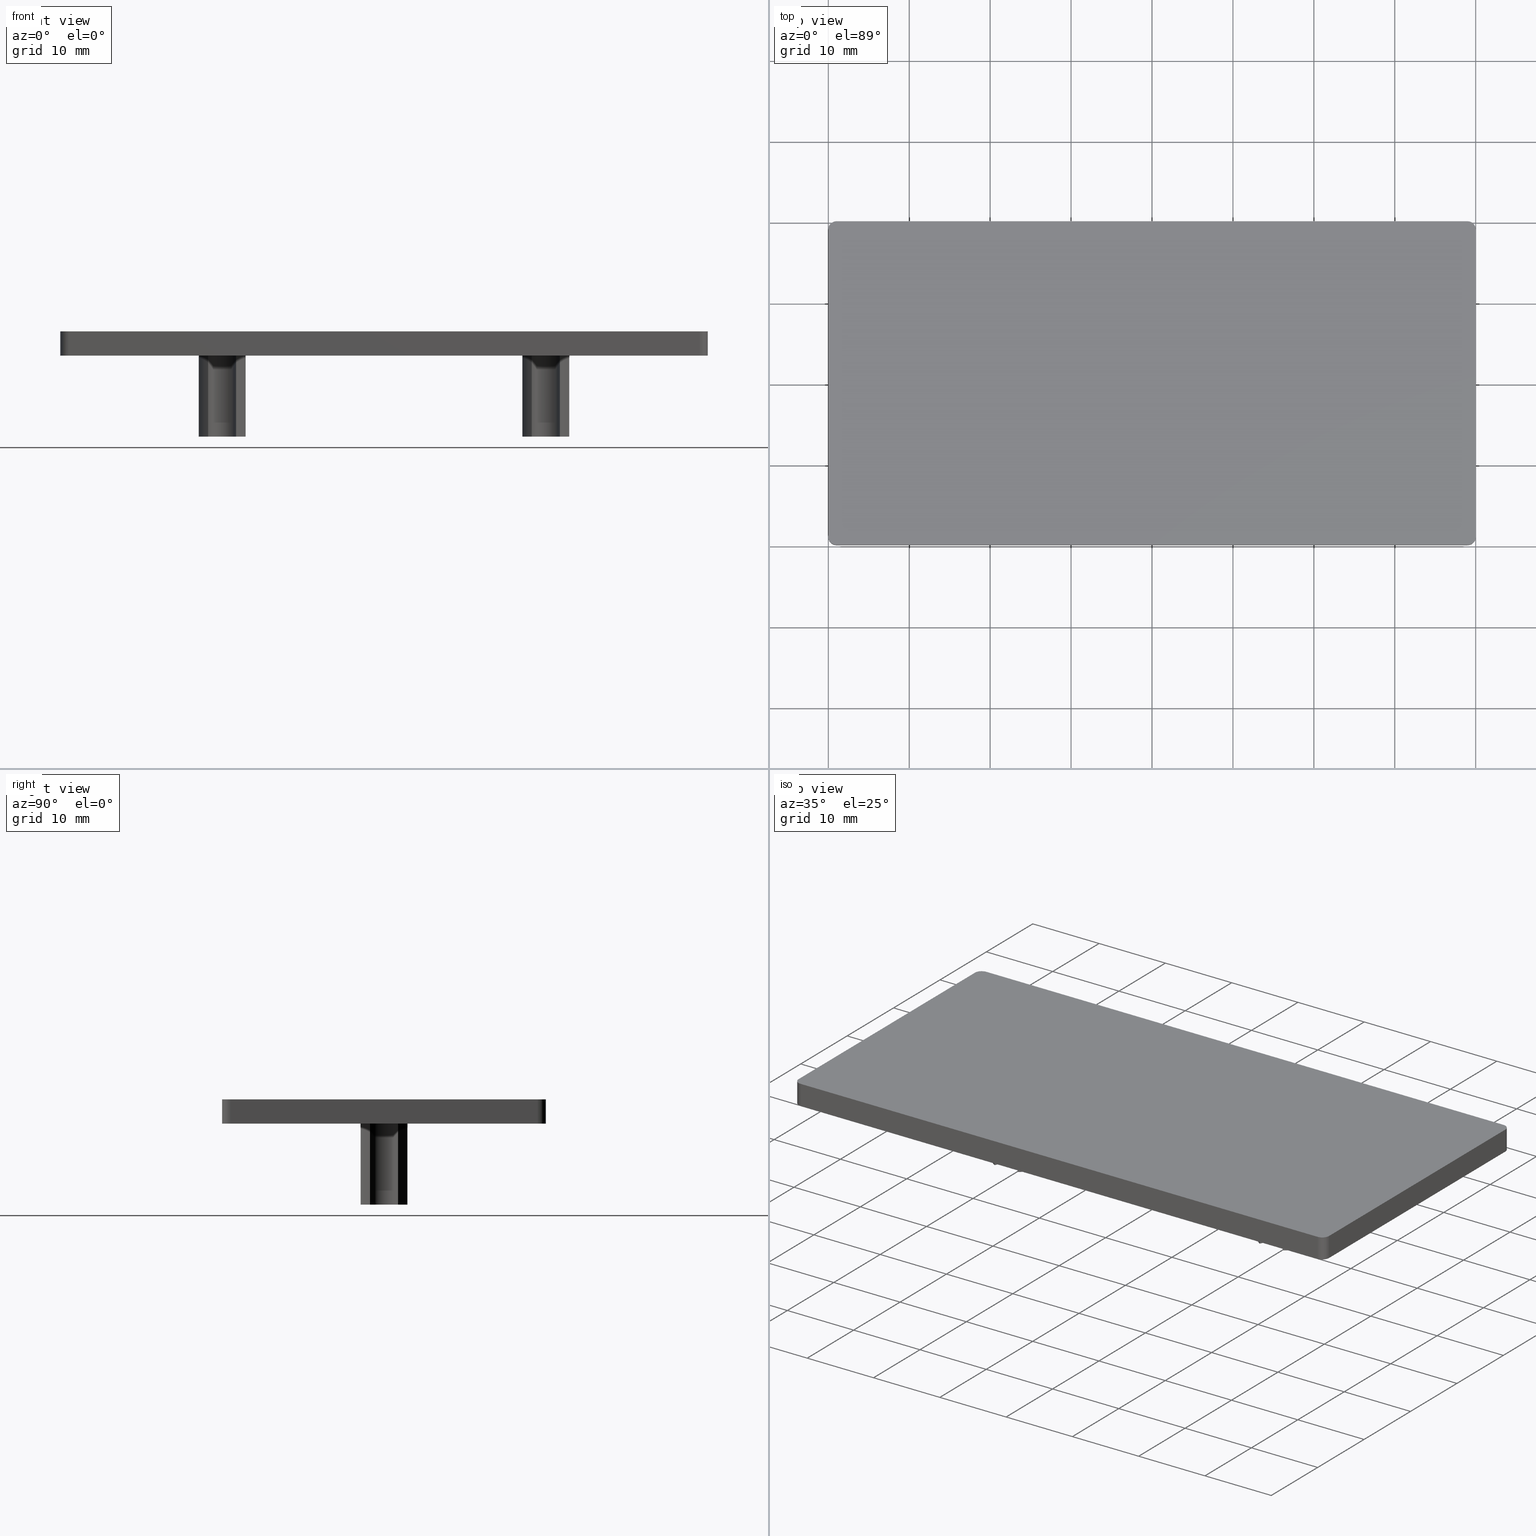
[diagram: canonical four-view strip — front | top / right | iso, engineering-drawing reading convention]
A machine part, canonical four-view strip (front | top / right | iso — engineering-drawing reading convention). The complete STEP part file that produces these views, byte-faithful:
ISO-10303-21;
HEADER;
/****************************************************************
 * Generated by software with PDE/Lib inside                    *
 * PDElib Version v4.4, created Mon 02/23/2004                  *
 * International Technegroup Inc. (www.iti-oh.com)              *
 ****************************************************************/
FILE_DESCRIPTION(('STEP AP203'),'2;1');
FILE_NAME('18.005.00.stp','2011-02-14T08:52:17',(''),(''),'2009.3.110','THINKDESIGN','');
FILE_SCHEMA(('CONFIG_CONTROL_DESIGN'));
ENDSEC;
DATA;
#2=CARTESIAN_POINT('',(-16.462427046943304,19.999999999999993,-10.000000010000004));
#3=DIRECTION('',(0.0,1.224647E-016,1.0));
#4=DIRECTION('',(0.820773029339414,0.571254439202884,-6.995849E-017));
#5=AXIS2_PLACEMENT_3D('',#2,#3,#4);
#6=CYLINDRICAL_SURFACE('',#5,1.850000000000001);
#7=CARTESIAN_POINT('',(-18.312427046943302,19.999999999999993,-10.000000000000004));
#8=VERTEX_POINT('',#7);
#9=CARTESIAN_POINT('',(-17.104999999999997,18.265180124623882,-10.000000000000002));
#10=VERTEX_POINT('',#9);
#11=CARTESIAN_POINT('',(-16.462427046943301,19.999999999999993,-10.000000000000004));
#12=DIRECTION('',(0.0,1.224647E-016,1.0));
#13=DIRECTION('',(0.0,-1.0,1.224647E-016));
#14=AXIS2_PLACEMENT_3D('',#11,#12,#13);
#15=CIRCLE('',#14,1.850000000000001);
#16=EDGE_CURVE('',#8,#10,#15,.T.);
#17=ORIENTED_EDGE('',*,*,#16,.F.);
#18=CARTESIAN_POINT('',(-18.312427046943302,19.999999999999993,-2.220446E-015));
#19=VERTEX_POINT('',#18);
#20=CARTESIAN_POINT('',(-18.312427046943302,19.999999999999993,-10.000000000000004));
#21=DIRECTION('',(0.0,0.0,1.0));
#22=VECTOR('',#21,10.0);
#23=LINE('',#20,#22);
#24=EDGE_CURVE('',#8,#19,#23,.T.);
#25=ORIENTED_EDGE('',*,*,#24,.T.);
#26=CARTESIAN_POINT('',(-17.104999999999997,18.265180124623882,-2.220446E-015));
#27=VERTEX_POINT('',#26);
#28=CARTESIAN_POINT('',(-16.462427046943301,19.999999999999993,-2.220446E-015));
#29=DIRECTION('',(0.0,1.224647E-016,1.0));
#30=DIRECTION('',(0.0,-1.0,1.224647E-016));
#31=AXIS2_PLACEMENT_3D('',#28,#29,#30);
#32=CIRCLE('',#31,1.850000000000001);
#33=EDGE_CURVE('',#19,#27,#32,.T.);
#34=ORIENTED_EDGE('',*,*,#33,.T.);
#35=CARTESIAN_POINT('',(-17.104999999999997,18.265180124623882,-10.000000000000002));
#36=DIRECTION('',(0.0,0.0,1.0));
#37=VECTOR('',#36,10.0);
#38=LINE('',#35,#37);
#39=EDGE_CURVE('',#10,#27,#38,.T.);
#40=ORIENTED_EDGE('',*,*,#39,.F.);
#41=EDGE_LOOP('',(#17,#25,#34,#40));
#42=FACE_OUTER_BOUND('',#41,.T.);
#43=ADVANCED_FACE('',(#42),#6,.F.);
#44=CARTESIAN_POINT('',(16.462427046943311,19.999999999999993,-10.000000010000004));
#45=DIRECTION('',(0.0,1.224647E-016,1.0));
#46=DIRECTION('',(-0.820773029339415,-0.571254439202882,6.995849E-017));
#47=AXIS2_PLACEMENT_3D('',#44,#45,#46);
#48=CYLINDRICAL_SURFACE('',#47,1.850000000000001);
#49=CARTESIAN_POINT('',(17.105000000000015,21.734819875376111,-10.000000000000004));
#50=VERTEX_POINT('',#49);
#51=CARTESIAN_POINT('',(18.312427046943316,19.999999999999993,-10.000000000000004));
#52=VERTEX_POINT('',#51);
#53=CARTESIAN_POINT('',(16.462427046943311,19.999999999999993,-10.000000000000004));
#54=DIRECTION('',(0.0,-1.224647E-016,-1.0));
#55=DIRECTION('',(0.0,-1.0,1.224647E-016));
#56=AXIS2_PLACEMENT_3D('',#53,#54,#55);
#57=CIRCLE('',#56,1.850000000000001);
#58=EDGE_CURVE('',#50,#52,#57,.T.);
#59=ORIENTED_EDGE('',*,*,#58,.T.);
#60=CARTESIAN_POINT('',(18.312427046943316,19.999999999999993,-2.220446E-015));
#61=VERTEX_POINT('',#60);
#62=CARTESIAN_POINT('',(18.312427046943316,19.999999999999993,-10.000000000000004));
#63=DIRECTION('',(0.0,0.0,1.0));
#64=VECTOR('',#63,10.0);
#65=LINE('',#62,#64);
#66=EDGE_CURVE('',#52,#61,#65,.T.);
#67=ORIENTED_EDGE('',*,*,#66,.T.);
#68=CARTESIAN_POINT('',(17.105000000000015,21.734819875376111,-2.664535E-015));
#69=VERTEX_POINT('',#68);
#70=CARTESIAN_POINT('',(16.462427046943311,19.999999999999993,-2.220446E-015));
#71=DIRECTION('',(0.0,-1.224647E-016,-1.0));
#72=DIRECTION('',(0.0,-1.0,1.224647E-016));
#73=AXIS2_PLACEMENT_3D('',#70,#71,#72);
#74=CIRCLE('',#73,1.850000000000001);
#75=EDGE_CURVE('',#69,#61,#74,.T.);
#76=ORIENTED_EDGE('',*,*,#75,.F.);
#77=CARTESIAN_POINT('',(17.105000000000015,21.734819875376111,-10.000000000000004));
#78=DIRECTION('',(0.0,0.0,1.0));
#79=VECTOR('',#78,10.0);
#80=LINE('',#77,#79);
#81=EDGE_CURVE('',#50,#69,#80,.T.);
#82=ORIENTED_EDGE('',*,*,#81,.F.);
#83=EDGE_LOOP('',(#59,#67,#76,#82));
#84=FACE_OUTER_BOUND('',#83,.T.);
#85=ADVANCED_FACE('',(#84),#48,.F.);
#86=CARTESIAN_POINT('',(20.000000000000011,19.999999999999993,-10.000000010000004));
#87=DIRECTION('',(0.0,1.224647E-016,1.0));
#88=DIRECTION('',(1.0,0.0,0.0));
#89=AXIS2_PLACEMENT_3D('',#86,#87,#88);
#90=CYLINDRICAL_SURFACE('',#89,3.375000000000000);
#91=CARTESIAN_POINT('',(17.105000000000015,18.265180124623882,-2.220446E-015));
#92=VERTEX_POINT('',#91);
#93=CARTESIAN_POINT('',(18.265180124623900,17.104999999999990,-2.220446E-015));
#94=VERTEX_POINT('',#93);
#95=CARTESIAN_POINT('',(20.000000000000011,19.999999999999993,-2.220446E-015));
#96=DIRECTION('',(0.0,1.224647E-016,1.0));
#97=DIRECTION('',(0.0,-1.0,1.224647E-016));
#98=AXIS2_PLACEMENT_3D('',#95,#96,#97);
#99=CIRCLE('',#98,3.374999999999998);
#100=EDGE_CURVE('',#92,#94,#99,.T.);
#101=ORIENTED_EDGE('',*,*,#100,.F.);
#102=CARTESIAN_POINT('',(17.105000000000015,18.265180124623882,-10.000000000000002));
#103=VERTEX_POINT('',#102);
#104=CARTESIAN_POINT('',(17.105000000000015,18.265180124623882,-10.000000000000002));
#105=DIRECTION('',(0.0,0.0,1.0));
#106=VECTOR('',#105,10.0);
#107=LINE('',#104,#106);
#108=EDGE_CURVE('',#103,#92,#107,.T.);
#109=ORIENTED_EDGE('',*,*,#108,.F.);
#110=CARTESIAN_POINT('',(18.265180124623900,17.104999999999990,-10.000000000000002));
#111=VERTEX_POINT('',#110);
#112=CARTESIAN_POINT('',(20.000000000000011,19.999999999999993,-10.000000000000004));
#113=DIRECTION('',(0.0,1.224647E-016,1.0));
#114=DIRECTION('',(0.0,-1.0,1.224647E-016));
#115=AXIS2_PLACEMENT_3D('',#112,#113,#114);
#116=CIRCLE('',#115,3.374999999999998);
#117=EDGE_CURVE('',#103,#111,#116,.T.);
#118=ORIENTED_EDGE('',*,*,#117,.T.);
#119=CARTESIAN_POINT('',(18.265180124623900,17.104999999999990,-10.000000000000002));
#120=DIRECTION('',(0.0,0.0,1.0));
#121=VECTOR('',#120,10.0);
#122=LINE('',#119,#121);
#123=EDGE_CURVE('',#111,#94,#122,.T.);
#124=ORIENTED_EDGE('',*,*,#123,.T.);
#125=EDGE_LOOP('',(#101,#109,#118,#124));
#126=FACE_OUTER_BOUND('',#125,.T.);
#127=ADVANCED_FACE('',(#126),#90,.T.);
#128=CARTESIAN_POINT('',(20.000000000000011,16.462427046943290,-10.000000010000001));
#129=DIRECTION('',(0.0,1.224647E-016,1.0));
#130=DIRECTION('',(1.0,0.0,0.0));
#131=AXIS2_PLACEMENT_3D('',#128,#129,#130);
#132=CYLINDRICAL_SURFACE('',#131,1.850000000000001);
#133=CARTESIAN_POINT('',(21.734819875376132,17.104999999999997,-2.220446E-015));
#134=VERTEX_POINT('',#133);
#135=CARTESIAN_POINT('',(20.000000000000011,16.462427046943297,-1.776357E-015));
#136=DIRECTION('',(0.0,-1.224647E-016,-1.0));
#137=DIRECTION('',(0.0,-1.0,1.224647E-016));
#138=AXIS2_PLACEMENT_3D('',#135,#136,#137);
#139=CIRCLE('',#138,1.850000000000000);
#140=EDGE_CURVE('',#94,#134,#139,.T.);
#141=ORIENTED_EDGE('',*,*,#140,.F.);
#142=ORIENTED_EDGE('',*,*,#123,.F.);
#143=CARTESIAN_POINT('',(21.734819875376132,17.104999999999990,-10.000000000000002));
#144=VERTEX_POINT('',#143);
#145=CARTESIAN_POINT('',(20.000000000000011,16.462427046943290,-10.000000000000002));
#146=DIRECTION('',(0.0,-1.224647E-016,-1.0));
#147=DIRECTION('',(0.0,-1.0,1.224647E-016));
#148=AXIS2_PLACEMENT_3D('',#145,#146,#147);
#149=CIRCLE('',#148,1.850000000000000);
#150=EDGE_CURVE('',#111,#144,#149,.T.);
#151=ORIENTED_EDGE('',*,*,#150,.T.);
#152=CARTESIAN_POINT('',(21.734819875376132,17.104999999999990,-10.000000000000002));
#153=DIRECTION('',(0.0,0.0,1.0));
#154=VECTOR('',#153,10.0);
#155=LINE('',#152,#154);
#156=EDGE_CURVE('',#144,#134,#155,.T.);
#157=ORIENTED_EDGE('',*,*,#156,.T.);
#158=EDGE_LOOP('',(#141,#142,#151,#157));
#159=FACE_OUTER_BOUND('',#158,.T.);
#160=ADVANCED_FACE('',(#159),#132,.F.);
#161=CARTESIAN_POINT('',(20.000000000000011,19.999999999999993,-10.000000010000004));
#162=DIRECTION('',(0.0,1.224647E-016,1.0));
#163=DIRECTION('',(1.0,0.0,0.0));
#164=AXIS2_PLACEMENT_3D('',#161,#162,#163);
#165=CYLINDRICAL_SURFACE('',#164,3.375000000000000);
#166=CARTESIAN_POINT('',(22.895000009413462,18.265180140332681,-2.220446E-015));
#167=VERTEX_POINT('',#166);
#168=CARTESIAN_POINT('',(20.000000000000011,19.999999999999993,-2.220446E-015));
#169=DIRECTION('',(0.0,1.224647E-016,1.0));
#170=DIRECTION('',(0.0,-1.0,1.224647E-016));
#171=AXIS2_PLACEMENT_3D('',#168,#169,#170);
#172=CIRCLE('',#171,3.374999999999999);
#173=EDGE_CURVE('',#134,#167,#172,.T.);
#174=ORIENTED_EDGE('',*,*,#173,.F.);
#175=ORIENTED_EDGE('',*,*,#156,.F.);
#176=CARTESIAN_POINT('',(22.895000009413462,18.265180140332681,-10.000000000000002));
#177=VERTEX_POINT('',#176);
#178=CARTESIAN_POINT('',(20.000000000000011,19.999999999999993,-10.000000000000004));
#179=DIRECTION('',(0.0,1.224647E-016,1.0));
#180=DIRECTION('',(0.0,-1.0,1.224647E-016));
#181=AXIS2_PLACEMENT_3D('',#178,#179,#180);
#182=CIRCLE('',#181,3.374999999999999);
#183=EDGE_CURVE('',#144,#177,#182,.T.);
#184=ORIENTED_EDGE('',*,*,#183,.T.);
#185=CARTESIAN_POINT('',(22.895000009413462,18.265180140332681,-10.000000000000002));
#186=DIRECTION('',(0.0,0.0,1.0));
#187=VECTOR('',#186,10.0);
#188=LINE('',#185,#187);
#189=EDGE_CURVE('',#177,#167,#188,.T.);
#190=ORIENTED_EDGE('',*,*,#189,.T.);
#191=EDGE_LOOP('',(#174,#175,#184,#190));
#192=FACE_OUTER_BOUND('',#191,.T.);
#193=ADVANCED_FACE('',(#192),#165,.T.);
#194=CARTESIAN_POINT('',(23.537573004880834,19.999999999999993,-10.000000010000004));
#195=DIRECTION('',(0.0,1.224647E-016,1.0));
#196=DIRECTION('',(1.0,0.0,0.0));
#197=AXIS2_PLACEMENT_3D('',#194,#195,#196);
#198=CYLINDRICAL_SURFACE('',#197,1.850000000000001);
#199=CARTESIAN_POINT('',(22.895000009413465,21.734819859667304,-2.664535E-015));
#200=VERTEX_POINT('',#199);
#201=CARTESIAN_POINT('',(23.537573004880834,19.999999999999993,-2.220446E-015));
#202=DIRECTION('',(0.0,-1.224647E-016,-1.0));
#203=DIRECTION('',(0.0,-1.0,1.224647E-016));
#204=AXIS2_PLACEMENT_3D('',#201,#202,#203);
#205=CIRCLE('',#204,1.850000000000003);
#206=EDGE_CURVE('',#167,#200,#205,.T.);
#207=ORIENTED_EDGE('',*,*,#206,.F.);
#208=ORIENTED_EDGE('',*,*,#189,.F.);
#209=CARTESIAN_POINT('',(22.895000009413465,21.734819859667297,-10.000000000000004));
#210=VERTEX_POINT('',#209);
#211=CARTESIAN_POINT('',(23.537573004880834,19.999999999999993,-10.000000000000004));
#212=DIRECTION('',(0.0,-1.224647E-016,-1.0));
#213=DIRECTION('',(0.0,-1.0,1.224647E-016));
#214=AXIS2_PLACEMENT_3D('',#211,#212,#213);
#215=CIRCLE('',#214,1.850000000000003);
#216=EDGE_CURVE('',#177,#210,#215,.T.);
#217=ORIENTED_EDGE('',*,*,#216,.T.);
#218=CARTESIAN_POINT('',(22.895000009413465,21.734819859667297,-10.000000000000004));
#219=DIRECTION('',(0.0,0.0,1.0));
#220=VECTOR('',#219,10.0);
#221=LINE('',#218,#220);
#222=EDGE_CURVE('',#210,#200,#221,.T.);
#223=ORIENTED_EDGE('',*,*,#222,.T.);
#224=EDGE_LOOP('',(#207,#208,#217,#223));
#225=FACE_OUTER_BOUND('',#224,.T.);
#226=ADVANCED_FACE('',(#225),#198,.F.);
#227=CARTESIAN_POINT('',(20.000000000000011,19.999999999999993,-10.000000010000004));
#228=DIRECTION('',(0.0,1.224647E-016,1.0));
#229=DIRECTION('',(1.0,0.0,0.0));
#230=AXIS2_PLACEMENT_3D('',#227,#228,#229);
#231=CYLINDRICAL_SURFACE('',#230,3.375000000000000);
#232=CARTESIAN_POINT('',(21.734819875376125,22.894999999999996,-2.664535E-015));
#233=VERTEX_POINT('',#232);
#234=CARTESIAN_POINT('',(20.000000000000011,19.999999999999993,-2.220446E-015));
#235=DIRECTION('',(0.0,1.224647E-016,1.0));
#236=DIRECTION('',(0.0,-1.0,1.224647E-016));
#237=AXIS2_PLACEMENT_3D('',#234,#235,#236);
#238=CIRCLE('',#237,3.375000000000001);
#239=EDGE_CURVE('',#200,#233,#238,.T.);
#240=ORIENTED_EDGE('',*,*,#239,.F.);
#241=ORIENTED_EDGE('',*,*,#222,.F.);
#242=CARTESIAN_POINT('',(21.734819875376125,22.894999999999996,-10.000000000000004));
#243=VERTEX_POINT('',#242);
#244=CARTESIAN_POINT('',(20.000000000000011,19.999999999999993,-10.000000000000004));
#245=DIRECTION('',(0.0,1.224647E-016,1.0));
#246=DIRECTION('',(0.0,-1.0,1.224647E-016));
#247=AXIS2_PLACEMENT_3D('',#244,#245,#246);
#248=CIRCLE('',#247,3.375000000000001);
#249=EDGE_CURVE('',#210,#243,#248,.T.);
#250=ORIENTED_EDGE('',*,*,#249,.T.);
#251=CARTESIAN_POINT('',(21.734819875376125,22.894999999999996,-10.000000000000004));
#252=DIRECTION('',(0.0,0.0,1.0));
#253=VECTOR('',#252,10.0);
#254=LINE('',#251,#253);
#255=EDGE_CURVE('',#243,#233,#254,.T.);
#256=ORIENTED_EDGE('',*,*,#255,.T.);
#257=EDGE_LOOP('',(#240,#241,#250,#256));
#258=FACE_OUTER_BOUND('',#257,.T.);
#259=ADVANCED_FACE('',(#258),#231,.T.);
#260=CARTESIAN_POINT('',(20.000000000000011,23.537572953056703,-10.000000010000004));
#261=DIRECTION('',(0.0,1.224647E-016,1.0));
#262=DIRECTION('',(1.0,0.0,0.0));
#263=AXIS2_PLACEMENT_3D('',#260,#261,#262);
#264=CYLINDRICAL_SURFACE('',#263,1.850000000000004);
#265=CARTESIAN_POINT('',(18.265180124623893,22.894999999999989,-2.664535E-015));
#266=VERTEX_POINT('',#265);
#267=CARTESIAN_POINT('',(20.000000000000011,23.537572953056703,-2.664535E-015));
#268=DIRECTION('',(0.0,-1.224647E-016,-1.0));
#269=DIRECTION('',(0.0,1.0,-1.224647E-016));
#270=AXIS2_PLACEMENT_3D('',#267,#268,#269);
#271=CIRCLE('',#270,1.850000000000004);
#272=EDGE_CURVE('',#233,#266,#271,.T.);
#273=ORIENTED_EDGE('',*,*,#272,.F.);
#274=ORIENTED_EDGE('',*,*,#255,.F.);
#275=CARTESIAN_POINT('',(18.265180124623893,22.894999999999989,-10.000000000000004));
#276=VERTEX_POINT('',#275);
#277=CARTESIAN_POINT('',(20.000000000000011,23.537572953056703,-10.000000000000004));
#278=DIRECTION('',(0.0,-1.224647E-016,-1.0));
#279=DIRECTION('',(0.0,1.0,-1.224647E-016));
#280=AXIS2_PLACEMENT_3D('',#277,#278,#279);
#281=CIRCLE('',#280,1.850000000000004);
#282=EDGE_CURVE('',#243,#276,#281,.T.);
#283=ORIENTED_EDGE('',*,*,#282,.T.);
#284=CARTESIAN_POINT('',(18.265180124623893,22.894999999999989,-10.000000000000004));
#285=DIRECTION('',(0.0,0.0,1.0));
#286=VECTOR('',#285,10.0);
#287=LINE('',#284,#286);
#288=EDGE_CURVE('',#276,#266,#287,.T.);
#289=ORIENTED_EDGE('',*,*,#288,.T.);
#290=EDGE_LOOP('',(#273,#274,#283,#289));
#291=FACE_OUTER_BOUND('',#290,.T.);
#292=ADVANCED_FACE('',(#291),#264,.F.);
#293=CARTESIAN_POINT('',(20.000000000000011,19.999999999999993,-10.000000010000004));
#294=DIRECTION('',(0.0,1.224647E-016,1.0));
#295=DIRECTION('',(1.0,0.0,0.0));
#296=AXIS2_PLACEMENT_3D('',#293,#294,#295);
#297=CYLINDRICAL_SURFACE('',#296,3.375000000000000);
#298=CARTESIAN_POINT('',(20.000000000000011,19.999999999999993,-2.220446E-015));
#299=DIRECTION('',(0.0,1.224647E-016,1.0));
#300=DIRECTION('',(0.0,-1.0,1.224647E-016));
#301=AXIS2_PLACEMENT_3D('',#298,#299,#300);
#302=CIRCLE('',#301,3.374999999999999);
#303=EDGE_CURVE('',#266,#69,#302,.T.);
#304=ORIENTED_EDGE('',*,*,#303,.F.);
#305=ORIENTED_EDGE('',*,*,#288,.F.);
#306=CARTESIAN_POINT('',(20.000000000000011,19.999999999999993,-10.000000000000004));
#307=DIRECTION('',(0.0,1.224647E-016,1.0));
#308=DIRECTION('',(0.0,-1.0,1.224647E-016));
#309=AXIS2_PLACEMENT_3D('',#306,#307,#308);
#310=CIRCLE('',#309,3.374999999999999);
#311=EDGE_CURVE('',#276,#50,#310,.T.);
#312=ORIENTED_EDGE('',*,*,#311,.T.);
#313=ORIENTED_EDGE('',*,*,#81,.T.);
#314=EDGE_LOOP('',(#304,#305,#312,#313));
#315=FACE_OUTER_BOUND('',#314,.T.);
#316=ADVANCED_FACE('',(#315),#297,.T.);
#317=CARTESIAN_POINT('',(16.462427046943311,19.999999999999993,-10.000000010000004));
#318=DIRECTION('',(0.0,1.224647E-016,1.0));
#319=DIRECTION('',(-0.820773029339415,0.571254439202882,-6.995849E-017));
#320=AXIS2_PLACEMENT_3D('',#317,#318,#319);
#321=CYLINDRICAL_SURFACE('',#320,1.850000000000001);
#322=ORIENTED_EDGE('',*,*,#66,.F.);
#323=CARTESIAN_POINT('',(16.462427046943311,19.999999999999993,-10.000000000000004));
#324=DIRECTION('',(0.0,-1.224647E-016,-1.0));
#325=DIRECTION('',(0.0,-1.0,1.224647E-016));
#326=AXIS2_PLACEMENT_3D('',#323,#324,#325);
#327=CIRCLE('',#326,1.850000000000001);
#328=EDGE_CURVE('',#52,#103,#327,.T.);
#329=ORIENTED_EDGE('',*,*,#328,.T.);
#330=ORIENTED_EDGE('',*,*,#108,.T.);
#331=CARTESIAN_POINT('',(16.462427046943311,19.999999999999993,-2.220446E-015));
#332=DIRECTION('',(0.0,-1.224647E-016,-1.0));
#333=DIRECTION('',(0.0,-1.0,1.224647E-016));
#334=AXIS2_PLACEMENT_3D('',#331,#332,#333);
#335=CIRCLE('',#334,1.850000000000001);
#336=EDGE_CURVE('',#61,#92,#335,.T.);
#337=ORIENTED_EDGE('',*,*,#336,.F.);
#338=EDGE_LOOP('',(#322,#329,#330,#337));
#339=FACE_OUTER_BOUND('',#338,.T.);
#340=ADVANCED_FACE('',(#339),#321,.F.);
#341=CARTESIAN_POINT('',(23.184500009884140,16.815499999999986,-10.000000000000002));
#342=DIRECTION('',(0.0,0.0,-1.0));
#343=DIRECTION('',(-1.0,0.0,0.0));
#344=AXIS2_PLACEMENT_3D('',#341,#342,#343);
#345=PLANE('',#344);
#346=ORIENTED_EDGE('',*,*,#117,.F.);
#347=ORIENTED_EDGE('',*,*,#328,.F.);
#348=ORIENTED_EDGE('',*,*,#58,.F.);
#349=ORIENTED_EDGE('',*,*,#311,.F.);
#350=ORIENTED_EDGE('',*,*,#282,.F.);
#351=ORIENTED_EDGE('',*,*,#249,.F.);
#352=ORIENTED_EDGE('',*,*,#216,.F.);
#353=ORIENTED_EDGE('',*,*,#183,.F.);
#354=ORIENTED_EDGE('',*,*,#150,.F.);
#355=EDGE_LOOP('',(#346,#347,#348,#349,#350,#351,#352,#353,#354));
#356=FACE_OUTER_BOUND('',#355,.T.);
#357=ADVANCED_FACE('',(#356),#345,.T.);
#358=CARTESIAN_POINT('',(-40.0,40.899999999999991,3.149999999999995));
#359=DIRECTION('',(1.0,0.0,0.0));
#360=DIRECTION('',(0.0,-1.0,0.0));
#361=AXIS2_PLACEMENT_3D('',#358,#359,#360);
#362=PLANE('',#361);
#363=CARTESIAN_POINT('',(-40.0,1.0,0.0));
#364=VERTEX_POINT('',#363);
#365=CARTESIAN_POINT('',(-40.0,38.999999999999993,-4.884981E-015));
#366=VERTEX_POINT('',#365);
#367=CARTESIAN_POINT('',(-40.0,1.0,0.0));
#368=DIRECTION('',(0.0,1.0,0.0));
#369=VECTOR('',#368,37.999999999999993);
#370=LINE('',#367,#369);
#371=EDGE_CURVE('',#364,#366,#370,.T.);
#372=ORIENTED_EDGE('',*,*,#371,.F.);
#373=CARTESIAN_POINT('',(-40.0,1.0,3.000000000000000));
#374=VERTEX_POINT('',#373);
#375=CARTESIAN_POINT('',(-40.0,1.0,0.0));
#376=DIRECTION('',(0.0,0.0,1.0));
#377=VECTOR('',#376,3.0);
#378=LINE('',#375,#377);
#379=EDGE_CURVE('',#364,#374,#378,.T.);
#380=ORIENTED_EDGE('',*,*,#379,.T.);
#381=CARTESIAN_POINT('',(-40.0,38.999999999999993,2.999999999999995));
#382=VERTEX_POINT('',#381);
#383=CARTESIAN_POINT('',(-40.0,1.0,3.000000000000000));
#384=DIRECTION('',(0.0,1.0,0.0));
#385=VECTOR('',#384,37.999999999999993);
#386=LINE('',#383,#385);
#387=EDGE_CURVE('',#374,#382,#386,.T.);
#388=ORIENTED_EDGE('',*,*,#387,.T.);
#389=CARTESIAN_POINT('',(-40.0,38.999999999999993,2.999999999999995));
#390=DIRECTION('',(0.0,0.0,-1.0));
#391=VECTOR('',#390,3.0);
#392=LINE('',#389,#391);
#393=EDGE_CURVE('',#382,#366,#392,.T.);
#394=ORIENTED_EDGE('',*,*,#393,.T.);
#395=EDGE_LOOP('',(#372,#380,#388,#394));
#396=FACE_OUTER_BOUND('',#395,.T.);
#397=ADVANCED_FACE('',(#396),#362,.F.);
#398=CARTESIAN_POINT('',(-42.899999999999970,39.999999999999993,3.149999999999996));
#399=DIRECTION('',(0.0,-1.0,0.0));
#400=DIRECTION('',(0.0,0.0,-1.0));
#401=AXIS2_PLACEMENT_3D('',#398,#399,#400);
#402=PLANE('',#401);
#403=CARTESIAN_POINT('',(-38.999999999999972,39.999999999999993,2.999999999999995));
#404=VERTEX_POINT('',#403);
#405=CARTESIAN_POINT('',(39.000000000000014,39.999999999999993,2.999999999999995));
#406=VERTEX_POINT('',#405);
#407=CARTESIAN_POINT('',(-38.999999999999972,39.999999999999993,2.999999999999995));
#408=DIRECTION('',(1.0,0.0,0.0));
#409=VECTOR('',#408,77.999999999999986);
#410=LINE('',#407,#409);
#411=EDGE_CURVE('',#404,#406,#410,.T.);
#412=ORIENTED_EDGE('',*,*,#411,.T.);
#413=CARTESIAN_POINT('',(39.000000000000014,39.999999999999993,-4.884981E-015));
#414=VERTEX_POINT('',#413);
#415=CARTESIAN_POINT('',(39.000000000000014,39.999999999999993,2.999999999999995));
#416=DIRECTION('',(0.0,0.0,-1.0));
#417=VECTOR('',#416,3.0);
#418=LINE('',#415,#417);
#419=EDGE_CURVE('',#406,#414,#418,.T.);
#420=ORIENTED_EDGE('',*,*,#419,.T.);
#421=CARTESIAN_POINT('',(-38.999999999999972,39.999999999999993,-4.884981E-015));
#422=VERTEX_POINT('',#421);
#423=CARTESIAN_POINT('',(-38.999999999999972,39.999999999999993,-4.884981E-015));
#424=DIRECTION('',(1.0,0.0,0.0));
#425=VECTOR('',#424,77.999999999999986);
#426=LINE('',#423,#425);
#427=EDGE_CURVE('',#422,#414,#426,.T.);
#428=ORIENTED_EDGE('',*,*,#427,.F.);
#429=CARTESIAN_POINT('',(-38.999999999999972,39.999999999999993,-4.884981E-015));
#430=DIRECTION('',(0.0,0.0,1.0));
#431=VECTOR('',#430,3.0);
#432=LINE('',#429,#431);
#433=EDGE_CURVE('',#422,#404,#432,.T.);
#434=ORIENTED_EDGE('',*,*,#433,.T.);
#435=EDGE_LOOP('',(#412,#420,#428,#434));
#436=FACE_OUTER_BOUND('',#435,.T.);
#437=ADVANCED_FACE('',(#436),#402,.F.);
#438=CARTESIAN_POINT('',(40.000000000000014,40.899999999999991,3.149999999999995));
#439=DIRECTION('',(-1.0,0.0,0.0));
#440=DIRECTION('',(0.0,0.0,-1.0));
#441=AXIS2_PLACEMENT_3D('',#438,#439,#440);
#442=PLANE('',#441);
#443=CARTESIAN_POINT('',(40.000000000000014,38.999999999999993,-4.884981E-015));
#444=VERTEX_POINT('',#443);
#445=CARTESIAN_POINT('',(40.000000000000014,1.0,0.0));
#446=VERTEX_POINT('',#445);
#447=CARTESIAN_POINT('',(40.000000000000014,38.999999999999993,-4.884981E-015));
#448=DIRECTION('',(0.0,-1.0,0.0));
#449=VECTOR('',#448,37.999999999999993);
#450=LINE('',#447,#449);
#451=EDGE_CURVE('',#444,#446,#450,.T.);
#452=ORIENTED_EDGE('',*,*,#451,.F.);
#453=CARTESIAN_POINT('',(40.000000000000014,38.999999999999993,2.999999999999995));
#454=VERTEX_POINT('',#453);
#455=CARTESIAN_POINT('',(40.000000000000014,38.999999999999993,-4.884981E-015));
#456=DIRECTION('',(0.0,0.0,1.0));
#457=VECTOR('',#456,3.0);
#458=LINE('',#455,#457);
#459=EDGE_CURVE('',#444,#454,#458,.T.);
#460=ORIENTED_EDGE('',*,*,#459,.T.);
#461=CARTESIAN_POINT('',(40.000000000000014,1.0,3.000000000000000));
#462=VERTEX_POINT('',#461);
#463=CARTESIAN_POINT('',(40.000000000000014,38.999999999999993,2.999999999999995));
#464=DIRECTION('',(0.0,-1.0,0.0));
#465=VECTOR('',#464,37.999999999999993);
#466=LINE('',#463,#465);
#467=EDGE_CURVE('',#454,#462,#466,.T.);
#468=ORIENTED_EDGE('',*,*,#467,.T.);
#469=CARTESIAN_POINT('',(40.000000000000014,1.0,3.000000000000000));
#470=DIRECTION('',(0.0,0.0,-1.0));
#471=VECTOR('',#470,3.0);
#472=LINE('',#469,#471);
#473=EDGE_CURVE('',#462,#446,#472,.T.);
#474=ORIENTED_EDGE('',*,*,#473,.T.);
#475=EDGE_LOOP('',(#452,#460,#468,#474));
#476=FACE_OUTER_BOUND('',#475,.T.);
#477=ADVANCED_FACE('',(#476),#442,.F.);
#478=CARTESIAN_POINT('',(-42.900000000000020,0.0,-0.150000000000000));
#479=DIRECTION('',(0.0,1.0,0.0));
#480=DIRECTION('',(0.0,0.0,1.0));
#481=AXIS2_PLACEMENT_3D('',#478,#479,#480);
#482=PLANE('',#481);
#483=CARTESIAN_POINT('',(39.000000000000014,0.0,0.0));
#484=VERTEX_POINT('',#483);
#485=CARTESIAN_POINT('',(-39.000000000000014,0.0,0.0));
#486=VERTEX_POINT('',#485);
#487=CARTESIAN_POINT('',(39.000000000000014,0.0,0.0));
#488=DIRECTION('',(-1.0,0.0,0.0));
#489=VECTOR('',#488,78.000000000000028);
#490=LINE('',#487,#489);
#491=EDGE_CURVE('',#484,#486,#490,.T.);
#492=ORIENTED_EDGE('',*,*,#491,.F.);
#493=CARTESIAN_POINT('',(39.000000000000014,0.0,3.000000000000000));
#494=VERTEX_POINT('',#493);
#495=CARTESIAN_POINT('',(39.000000000000014,0.0,0.0));
#496=DIRECTION('',(0.0,0.0,1.0));
#497=VECTOR('',#496,3.0);
#498=LINE('',#495,#497);
#499=EDGE_CURVE('',#484,#494,#498,.T.);
#500=ORIENTED_EDGE('',*,*,#499,.T.);
#501=CARTESIAN_POINT('',(-39.000000000000014,0.0,3.000000000000000));
#502=VERTEX_POINT('',#501);
#503=CARTESIAN_POINT('',(39.000000000000014,0.0,3.000000000000000));
#504=DIRECTION('',(-1.0,0.0,0.0));
#505=VECTOR('',#504,78.000000000000028);
#506=LINE('',#503,#505);
#507=EDGE_CURVE('',#494,#502,#506,.T.);
#508=ORIENTED_EDGE('',*,*,#507,.T.);
#509=CARTESIAN_POINT('',(-39.000000000000014,0.0,3.000000000000000));
#510=DIRECTION('',(0.0,0.0,-1.0));
#511=VECTOR('',#510,3.0);
#512=LINE('',#509,#511);
#513=EDGE_CURVE('',#502,#486,#512,.T.);
#514=ORIENTED_EDGE('',*,*,#513,.T.);
#515=EDGE_LOOP('',(#492,#500,#508,#514));
#516=FACE_OUTER_BOUND('',#515,.T.);
#517=ADVANCED_FACE('',(#516),#482,.F.);
#518=CARTESIAN_POINT('',(-44.0,41.999999999999993,-4.884981E-015));
#519=DIRECTION('',(0.0,0.0,-1.0));
#520=DIRECTION('',(1.0,0.0,0.0));
#521=AXIS2_PLACEMENT_3D('',#518,#519,#520);
#522=PLANE('',#521);
#523=ORIENTED_EDGE('',*,*,#427,.T.);
#524=CARTESIAN_POINT('',(39.000000000000014,38.999999999999993,-4.884981E-015));
#525=DIRECTION('',(0.0,-1.224647E-016,-1.0));
#526=DIRECTION('',(1.0,0.0,0.0));
#527=AXIS2_PLACEMENT_3D('',#524,#525,#526);
#528=CIRCLE('',#527,1.000000000000001);
#529=EDGE_CURVE('',#414,#444,#528,.T.);
#530=ORIENTED_EDGE('',*,*,#529,.T.);
#531=ORIENTED_EDGE('',*,*,#451,.T.);
#532=CARTESIAN_POINT('',(39.000000000000014,1.0,0.0));
#533=DIRECTION('',(0.0,-1.224647E-016,-1.0));
#534=DIRECTION('',(1.0,0.0,0.0));
#535=AXIS2_PLACEMENT_3D('',#532,#533,#534);
#536=CIRCLE('',#535,1.000000000000001);
#537=EDGE_CURVE('',#446,#484,#536,.T.);
#538=ORIENTED_EDGE('',*,*,#537,.T.);
#539=ORIENTED_EDGE('',*,*,#491,.T.);
#540=CARTESIAN_POINT('',(-39.0,1.0,0.0));
#541=DIRECTION('',(0.0,-1.224647E-016,-1.0));
#542=DIRECTION('',(1.0,0.0,0.0));
#543=AXIS2_PLACEMENT_3D('',#540,#541,#542);
#544=CIRCLE('',#543,1.000000000000001);
#545=EDGE_CURVE('',#486,#364,#544,.T.);
#546=ORIENTED_EDGE('',*,*,#545,.T.);
#547=ORIENTED_EDGE('',*,*,#371,.T.);
#548=CARTESIAN_POINT('',(-38.999999999999972,38.999999999999993,-4.884981E-015));
#549=DIRECTION('',(0.0,-1.224647E-016,-1.0));
#550=DIRECTION('',(1.0,0.0,0.0));
#551=AXIS2_PLACEMENT_3D('',#548,#549,#550);
#552=CIRCLE('',#551,1.000000000000001);
#553=EDGE_CURVE('',#366,#422,#552,.T.);
#554=ORIENTED_EDGE('',*,*,#553,.T.);
#555=EDGE_LOOP('',(#523,#530,#531,#538,#539,#546,#547,#554));
#556=FACE_OUTER_BOUND('',#555,.T.);
#557=CARTESIAN_POINT('',(-18.265180124623878,17.104999999999990,-2.220446E-015));
#558=VERTEX_POINT('',#557);
#559=CARTESIAN_POINT('',(-19.999999999999996,19.999999999999993,-2.220446E-015));
#560=DIRECTION('',(0.0,-1.224647E-016,-1.0));
#561=DIRECTION('',(0.0,-1.0,1.224647E-016));
#562=AXIS2_PLACEMENT_3D('',#559,#560,#561);
#563=CIRCLE('',#562,3.374999999999998);
#564=EDGE_CURVE('',#27,#558,#563,.T.);
#565=ORIENTED_EDGE('',*,*,#564,.F.);
#566=ORIENTED_EDGE('',*,*,#33,.F.);
#567=CARTESIAN_POINT('',(-17.104999999999997,21.734819875376111,-2.664535E-015));
#568=VERTEX_POINT('',#567);
#569=CARTESIAN_POINT('',(-16.462427046943301,19.999999999999993,-2.220446E-015));
#570=DIRECTION('',(0.0,1.224647E-016,1.0));
#571=DIRECTION('',(0.0,-1.0,1.224647E-016));
#572=AXIS2_PLACEMENT_3D('',#569,#570,#571);
#573=CIRCLE('',#572,1.850000000000001);
#574=EDGE_CURVE('',#568,#19,#573,.T.);
#575=ORIENTED_EDGE('',*,*,#574,.F.);
#576=CARTESIAN_POINT('',(-18.265180124623878,22.894999999999989,-2.664535E-015));
#577=VERTEX_POINT('',#576);
#578=CARTESIAN_POINT('',(-19.999999999999996,19.999999999999993,-2.220446E-015));
#579=DIRECTION('',(0.0,-1.224647E-016,-1.0));
#580=DIRECTION('',(0.0,-1.0,1.224647E-016));
#581=AXIS2_PLACEMENT_3D('',#578,#579,#580);
#582=CIRCLE('',#581,3.374999999999999);
#583=EDGE_CURVE('',#577,#568,#582,.T.);
#584=ORIENTED_EDGE('',*,*,#583,.F.);
#585=CARTESIAN_POINT('',(-21.734819875376111,22.894999999999996,-2.664535E-015));
#586=VERTEX_POINT('',#585);
#587=CARTESIAN_POINT('',(-19.999999999999996,23.537572953056703,-2.664535E-015));
#588=DIRECTION('',(0.0,1.224647E-016,1.0));
#589=DIRECTION('',(0.0,1.0,-1.224647E-016));
#590=AXIS2_PLACEMENT_3D('',#587,#588,#589);
#591=CIRCLE('',#590,1.850000000000004);
#592=EDGE_CURVE('',#586,#577,#591,.T.);
#593=ORIENTED_EDGE('',*,*,#592,.F.);
#594=CARTESIAN_POINT('',(-22.895000009413437,21.734819859667304,-2.664535E-015));
#595=VERTEX_POINT('',#594);
#596=CARTESIAN_POINT('',(-19.999999999999996,19.999999999999993,-2.220446E-015));
#597=DIRECTION('',(0.0,-1.224647E-016,-1.0));
#598=DIRECTION('',(0.0,-1.0,1.224647E-016));
#599=AXIS2_PLACEMENT_3D('',#596,#597,#598);
#600=CIRCLE('',#599,3.375000000000001);
#601=EDGE_CURVE('',#595,#586,#600,.T.);
#602=ORIENTED_EDGE('',*,*,#601,.F.);
#603=CARTESIAN_POINT('',(-22.895000009413437,18.265180140332681,-2.220446E-015));
#604=VERTEX_POINT('',#603);
#605=CARTESIAN_POINT('',(-23.537573004880816,19.999999999999993,-2.220446E-015));
#606=DIRECTION('',(0.0,1.224647E-016,1.0));
#607=DIRECTION('',(0.0,-1.0,1.224647E-016));
#608=AXIS2_PLACEMENT_3D('',#605,#606,#607);
#609=CIRCLE('',#608,1.850000000000003);
#610=EDGE_CURVE('',#604,#595,#609,.T.);
#611=ORIENTED_EDGE('',*,*,#610,.F.);
#612=CARTESIAN_POINT('',(-21.734819875376111,17.104999999999997,-2.220446E-015));
#613=VERTEX_POINT('',#612);
#614=CARTESIAN_POINT('',(-19.999999999999996,19.999999999999993,-2.220446E-015));
#615=DIRECTION('',(0.0,-1.224647E-016,-1.0));
#616=DIRECTION('',(0.0,-1.0,1.224647E-016));
#617=AXIS2_PLACEMENT_3D('',#614,#615,#616);
#618=CIRCLE('',#617,3.374999999999999);
#619=EDGE_CURVE('',#613,#604,#618,.T.);
#620=ORIENTED_EDGE('',*,*,#619,.F.);
#621=CARTESIAN_POINT('',(-19.999999999999996,16.462427046943297,-1.776357E-015));
#622=DIRECTION('',(0.0,1.224647E-016,1.0));
#623=DIRECTION('',(0.0,-1.0,1.224647E-016));
#624=AXIS2_PLACEMENT_3D('',#621,#622,#623);
#625=CIRCLE('',#624,1.850000000000000);
#626=EDGE_CURVE('',#558,#613,#625,.T.);
#627=ORIENTED_EDGE('',*,*,#626,.F.);
#628=EDGE_LOOP('',(#565,#566,#575,#584,#593,#602,#611,#620,#627));
#629=FACE_BOUND('',#628,.T.);
#630=ORIENTED_EDGE('',*,*,#100,.T.);
#631=ORIENTED_EDGE('',*,*,#140,.T.);
#632=ORIENTED_EDGE('',*,*,#173,.T.);
#633=ORIENTED_EDGE('',*,*,#206,.T.);
#634=ORIENTED_EDGE('',*,*,#239,.T.);
#635=ORIENTED_EDGE('',*,*,#272,.T.);
#636=ORIENTED_EDGE('',*,*,#303,.T.);
#637=ORIENTED_EDGE('',*,*,#75,.T.);
#638=ORIENTED_EDGE('',*,*,#336,.T.);
#639=EDGE_LOOP('',(#630,#631,#632,#633,#634,#635,#636,#637,#638));
#640=FACE_BOUND('',#639,.T.);
#641=ADVANCED_FACE('',(#556,#629,#640),#522,.T.);
#642=CARTESIAN_POINT('',(-44.0,41.999999999999993,2.999999999999995));
#643=DIRECTION('',(0.0,0.0,-1.0));
#644=DIRECTION('',(1.0,0.0,0.0));
#645=AXIS2_PLACEMENT_3D('',#642,#643,#644);
#646=PLANE('',#645);
#647=ORIENTED_EDGE('',*,*,#467,.F.);
#648=CARTESIAN_POINT('',(39.000000000000014,38.999999999999993,2.999999999999995));
#649=DIRECTION('',(0.0,1.224647E-016,1.0));
#650=DIRECTION('',(1.0,0.0,0.0));
#651=AXIS2_PLACEMENT_3D('',#648,#649,#650);
#652=CIRCLE('',#651,1.000000000000001);
#653=EDGE_CURVE('',#454,#406,#652,.T.);
#654=ORIENTED_EDGE('',*,*,#653,.T.);
#655=ORIENTED_EDGE('',*,*,#411,.F.);
#656=CARTESIAN_POINT('',(-38.999999999999972,38.999999999999993,2.999999999999995));
#657=DIRECTION('',(0.0,1.224647E-016,1.0));
#658=DIRECTION('',(1.0,0.0,0.0));
#659=AXIS2_PLACEMENT_3D('',#656,#657,#658);
#660=CIRCLE('',#659,1.000000000000001);
#661=EDGE_CURVE('',#404,#382,#660,.T.);
#662=ORIENTED_EDGE('',*,*,#661,.T.);
#663=ORIENTED_EDGE('',*,*,#387,.F.);
#664=CARTESIAN_POINT('',(-39.0,1.0,3.000000000000000));
#665=DIRECTION('',(0.0,1.224647E-016,1.0));
#666=DIRECTION('',(1.0,0.0,0.0));
#667=AXIS2_PLACEMENT_3D('',#664,#665,#666);
#668=CIRCLE('',#667,1.000000000000001);
#669=EDGE_CURVE('',#374,#502,#668,.T.);
#670=ORIENTED_EDGE('',*,*,#669,.T.);
#671=ORIENTED_EDGE('',*,*,#507,.F.);
#672=CARTESIAN_POINT('',(39.000000000000014,1.0,3.000000000000000));
#673=DIRECTION('',(0.0,1.224647E-016,1.0));
#674=DIRECTION('',(1.0,0.0,0.0));
#675=AXIS2_PLACEMENT_3D('',#672,#673,#674);
#676=CIRCLE('',#675,1.000000000000001);
#677=EDGE_CURVE('',#494,#462,#676,.T.);
#678=ORIENTED_EDGE('',*,*,#677,.T.);
#679=EDGE_LOOP('',(#647,#654,#655,#662,#663,#670,#671,#678));
#680=FACE_OUTER_BOUND('',#679,.T.);
#681=ADVANCED_FACE('',(#680),#646,.F.);
#682=CARTESIAN_POINT('',(-38.999999999999972,38.999999999999986,-0.000000010000005));
#683=DIRECTION('',(0.0,1.224647E-016,1.0));
#684=DIRECTION('',(0.707106781186547,-0.707106781186548,8.659561E-017));
#685=AXIS2_PLACEMENT_3D('',#682,#683,#684);
#686=CYLINDRICAL_SURFACE('',#685,1.000000000000001);
#687=ORIENTED_EDGE('',*,*,#553,.F.);
#688=ORIENTED_EDGE('',*,*,#393,.F.);
#689=ORIENTED_EDGE('',*,*,#661,.F.);
#690=ORIENTED_EDGE('',*,*,#433,.F.);
#691=EDGE_LOOP('',(#687,#688,#689,#690));
#692=FACE_OUTER_BOUND('',#691,.T.);
#693=ADVANCED_FACE('',(#692),#686,.T.);
#694=CARTESIAN_POINT('',(-39.0,1.0,-1.000000E-008));
#695=DIRECTION('',(0.0,1.224647E-016,1.0));
#696=DIRECTION('',(0.707106781186547,0.707106781186548,-8.659561E-017));
#697=AXIS2_PLACEMENT_3D('',#694,#695,#696);
#698=CYLINDRICAL_SURFACE('',#697,1.000000000000001);
#699=ORIENTED_EDGE('',*,*,#545,.F.);
#700=ORIENTED_EDGE('',*,*,#513,.F.);
#701=ORIENTED_EDGE('',*,*,#669,.F.);
#702=ORIENTED_EDGE('',*,*,#379,.F.);
#703=EDGE_LOOP('',(#699,#700,#701,#702));
#704=FACE_OUTER_BOUND('',#703,.T.);
#705=ADVANCED_FACE('',(#704),#698,.T.);
#706=CARTESIAN_POINT('',(39.000000000000014,1.0,-1.000000E-008));
#707=DIRECTION('',(0.0,1.224647E-016,1.0));
#708=DIRECTION('',(-1.0,0.0,0.0));
#709=AXIS2_PLACEMENT_3D('',#706,#707,#708);
#710=CYLINDRICAL_SURFACE('',#709,1.000000000000001);
#711=ORIENTED_EDGE('',*,*,#537,.F.);
#712=ORIENTED_EDGE('',*,*,#473,.F.);
#713=ORIENTED_EDGE('',*,*,#677,.F.);
#714=ORIENTED_EDGE('',*,*,#499,.F.);
#715=EDGE_LOOP('',(#711,#712,#713,#714));
#716=FACE_OUTER_BOUND('',#715,.T.);
#717=ADVANCED_FACE('',(#716),#710,.T.);
#718=CARTESIAN_POINT('',(39.000000000000014,38.999999999999993,-0.000000010000005));
#719=DIRECTION('',(0.0,1.224647E-016,1.0));
#720=DIRECTION('',(-1.0,0.0,0.0));
#721=AXIS2_PLACEMENT_3D('',#718,#719,#720);
#722=CYLINDRICAL_SURFACE('',#721,1.000000000000001);
#723=ORIENTED_EDGE('',*,*,#529,.F.);
#724=ORIENTED_EDGE('',*,*,#419,.F.);
#725=ORIENTED_EDGE('',*,*,#653,.F.);
#726=ORIENTED_EDGE('',*,*,#459,.F.);
#727=EDGE_LOOP('',(#723,#724,#725,#726));
#728=FACE_OUTER_BOUND('',#727,.T.);
#729=ADVANCED_FACE('',(#728),#722,.T.);
#730=CARTESIAN_POINT('',(-19.999999999999996,19.999999999999993,-10.000000010000004));
#731=DIRECTION('',(0.0,1.224647E-016,1.0));
#732=DIRECTION('',(-1.0,0.0,0.0));
#733=AXIS2_PLACEMENT_3D('',#730,#731,#732);
#734=CYLINDRICAL_SURFACE('',#733,3.375000000000000);
#735=ORIENTED_EDGE('',*,*,#564,.T.);
#736=CARTESIAN_POINT('',(-18.265180124623878,17.104999999999990,-10.000000000000002));
#737=VERTEX_POINT('',#736);
#738=CARTESIAN_POINT('',(-18.265180124623878,17.104999999999990,-10.000000000000002));
#739=DIRECTION('',(0.0,0.0,1.0));
#740=VECTOR('',#739,10.0);
#741=LINE('',#738,#740);
#742=EDGE_CURVE('',#737,#558,#741,.T.);
#743=ORIENTED_EDGE('',*,*,#742,.F.);
#744=CARTESIAN_POINT('',(-19.999999999999996,19.999999999999993,-10.000000000000004));
#745=DIRECTION('',(0.0,-1.224647E-016,-1.0));
#746=DIRECTION('',(0.0,-1.0,1.224647E-016));
#747=AXIS2_PLACEMENT_3D('',#744,#745,#746);
#748=CIRCLE('',#747,3.374999999999998);
#749=EDGE_CURVE('',#10,#737,#748,.T.);
#750=ORIENTED_EDGE('',*,*,#749,.F.);
#751=ORIENTED_EDGE('',*,*,#39,.T.);
#752=EDGE_LOOP('',(#735,#743,#750,#751));
#753=FACE_OUTER_BOUND('',#752,.T.);
#754=ADVANCED_FACE('',(#753),#734,.T.);
#755=CARTESIAN_POINT('',(-19.999999999999996,16.462427046943290,-10.000000010000001));
#756=DIRECTION('',(0.0,1.224647E-016,1.0));
#757=DIRECTION('',(-1.0,0.0,0.0));
#758=AXIS2_PLACEMENT_3D('',#755,#756,#757);
#759=CYLINDRICAL_SURFACE('',#758,1.850000000000001);
#760=ORIENTED_EDGE('',*,*,#626,.T.);
#761=CARTESIAN_POINT('',(-21.734819875376111,17.104999999999990,-10.000000000000002));
#762=VERTEX_POINT('',#761);
#763=CARTESIAN_POINT('',(-21.734819875376111,17.104999999999990,-10.000000000000002));
#764=DIRECTION('',(0.0,0.0,1.0));
#765=VECTOR('',#764,10.0);
#766=LINE('',#763,#765);
#767=EDGE_CURVE('',#762,#613,#766,.T.);
#768=ORIENTED_EDGE('',*,*,#767,.F.);
#769=CARTESIAN_POINT('',(-19.999999999999996,16.462427046943290,-10.000000000000002));
#770=DIRECTION('',(0.0,1.224647E-016,1.0));
#771=DIRECTION('',(0.0,-1.0,1.224647E-016));
#772=AXIS2_PLACEMENT_3D('',#769,#770,#771);
#773=CIRCLE('',#772,1.850000000000000);
#774=EDGE_CURVE('',#737,#762,#773,.T.);
#775=ORIENTED_EDGE('',*,*,#774,.F.);
#776=ORIENTED_EDGE('',*,*,#742,.T.);
#777=EDGE_LOOP('',(#760,#768,#775,#776));
#778=FACE_OUTER_BOUND('',#777,.T.);
#779=ADVANCED_FACE('',(#778),#759,.F.);
#780=CARTESIAN_POINT('',(-19.999999999999996,19.999999999999993,-10.000000010000004));
#781=DIRECTION('',(0.0,1.224647E-016,1.0));
#782=DIRECTION('',(-1.0,0.0,0.0));
#783=AXIS2_PLACEMENT_3D('',#780,#781,#782);
#784=CYLINDRICAL_SURFACE('',#783,3.375000000000000);
#785=ORIENTED_EDGE('',*,*,#619,.T.);
#786=CARTESIAN_POINT('',(-22.895000009413437,18.265180140332681,-10.000000000000002));
#787=VERTEX_POINT('',#786);
#788=CARTESIAN_POINT('',(-22.895000009413437,18.265180140332681,-10.000000000000002));
#789=DIRECTION('',(0.0,0.0,1.0));
#790=VECTOR('',#789,10.0);
#791=LINE('',#788,#790);
#792=EDGE_CURVE('',#787,#604,#791,.T.);
#793=ORIENTED_EDGE('',*,*,#792,.F.);
#794=CARTESIAN_POINT('',(-19.999999999999996,19.999999999999993,-10.000000000000004));
#795=DIRECTION('',(0.0,-1.224647E-016,-1.0));
#796=DIRECTION('',(0.0,-1.0,1.224647E-016));
#797=AXIS2_PLACEMENT_3D('',#794,#795,#796);
#798=CIRCLE('',#797,3.374999999999999);
#799=EDGE_CURVE('',#762,#787,#798,.T.);
#800=ORIENTED_EDGE('',*,*,#799,.F.);
#801=ORIENTED_EDGE('',*,*,#767,.T.);
#802=EDGE_LOOP('',(#785,#793,#800,#801));
#803=FACE_OUTER_BOUND('',#802,.T.);
#804=ADVANCED_FACE('',(#803),#784,.T.);
#805=CARTESIAN_POINT('',(-23.537573004880816,19.999999999999993,-10.000000010000004));
#806=DIRECTION('',(0.0,1.224647E-016,1.0));
#807=DIRECTION('',(-1.0,0.0,0.0));
#808=AXIS2_PLACEMENT_3D('',#805,#806,#807);
#809=CYLINDRICAL_SURFACE('',#808,1.850000000000004);
#810=ORIENTED_EDGE('',*,*,#610,.T.);
#811=CARTESIAN_POINT('',(-22.895000009413437,21.734819859667297,-10.000000000000004));
#812=VERTEX_POINT('',#811);
#813=CARTESIAN_POINT('',(-22.895000009413437,21.734819859667297,-10.000000000000004));
#814=DIRECTION('',(0.0,0.0,1.0));
#815=VECTOR('',#814,10.0);
#816=LINE('',#813,#815);
#817=EDGE_CURVE('',#812,#595,#816,.T.);
#818=ORIENTED_EDGE('',*,*,#817,.F.);
#819=CARTESIAN_POINT('',(-23.537573004880816,19.999999999999993,-10.000000000000004));
#820=DIRECTION('',(0.0,1.224647E-016,1.0));
#821=DIRECTION('',(0.0,-1.0,1.224647E-016));
#822=AXIS2_PLACEMENT_3D('',#819,#820,#821);
#823=CIRCLE('',#822,1.850000000000003);
#824=EDGE_CURVE('',#787,#812,#823,.T.);
#825=ORIENTED_EDGE('',*,*,#824,.F.);
#826=ORIENTED_EDGE('',*,*,#792,.T.);
#827=EDGE_LOOP('',(#810,#818,#825,#826));
#828=FACE_OUTER_BOUND('',#827,.T.);
#829=ADVANCED_FACE('',(#828),#809,.F.);
#830=CARTESIAN_POINT('',(-19.999999999999996,19.999999999999993,-10.000000010000004));
#831=DIRECTION('',(0.0,1.224647E-016,1.0));
#832=DIRECTION('',(-1.0,0.0,0.0));
#833=AXIS2_PLACEMENT_3D('',#830,#831,#832);
#834=CYLINDRICAL_SURFACE('',#833,3.375000000000000);
#835=ORIENTED_EDGE('',*,*,#601,.T.);
#836=CARTESIAN_POINT('',(-21.734819875376111,22.894999999999996,-10.000000000000004));
#837=VERTEX_POINT('',#836);
#838=CARTESIAN_POINT('',(-21.734819875376111,22.894999999999996,-10.000000000000004));
#839=DIRECTION('',(0.0,0.0,1.0));
#840=VECTOR('',#839,10.0);
#841=LINE('',#838,#840);
#842=EDGE_CURVE('',#837,#586,#841,.T.);
#843=ORIENTED_EDGE('',*,*,#842,.F.);
#844=CARTESIAN_POINT('',(-19.999999999999996,19.999999999999993,-10.000000000000004));
#845=DIRECTION('',(0.0,-1.224647E-016,-1.0));
#846=DIRECTION('',(0.0,-1.0,1.224647E-016));
#847=AXIS2_PLACEMENT_3D('',#844,#845,#846);
#848=CIRCLE('',#847,3.375000000000001);
#849=EDGE_CURVE('',#812,#837,#848,.T.);
#850=ORIENTED_EDGE('',*,*,#849,.F.);
#851=ORIENTED_EDGE('',*,*,#817,.T.);
#852=EDGE_LOOP('',(#835,#843,#850,#851));
#853=FACE_OUTER_BOUND('',#852,.T.);
#854=ADVANCED_FACE('',(#853),#834,.T.);
#855=CARTESIAN_POINT('',(-19.999999999999996,23.537572953056703,-10.000000010000004));
#856=DIRECTION('',(0.0,1.224647E-016,1.0));
#857=DIRECTION('',(-1.0,0.0,0.0));
#858=AXIS2_PLACEMENT_3D('',#855,#856,#857);
#859=CYLINDRICAL_SURFACE('',#858,1.850000000000004);
#860=ORIENTED_EDGE('',*,*,#592,.T.);
#861=CARTESIAN_POINT('',(-18.265180124623878,22.894999999999989,-10.000000000000004));
#862=VERTEX_POINT('',#861);
#863=CARTESIAN_POINT('',(-18.265180124623878,22.894999999999989,-10.000000000000004));
#864=DIRECTION('',(0.0,0.0,1.0));
#865=VECTOR('',#864,10.0);
#866=LINE('',#863,#865);
#867=EDGE_CURVE('',#862,#577,#866,.T.);
#868=ORIENTED_EDGE('',*,*,#867,.F.);
#869=CARTESIAN_POINT('',(-19.999999999999996,23.537572953056703,-10.000000000000004));
#870=DIRECTION('',(0.0,1.224647E-016,1.0));
#871=DIRECTION('',(0.0,1.0,-1.224647E-016));
#872=AXIS2_PLACEMENT_3D('',#869,#870,#871);
#873=CIRCLE('',#872,1.850000000000004);
#874=EDGE_CURVE('',#837,#862,#873,.T.);
#875=ORIENTED_EDGE('',*,*,#874,.F.);
#876=ORIENTED_EDGE('',*,*,#842,.T.);
#877=EDGE_LOOP('',(#860,#868,#875,#876));
#878=FACE_OUTER_BOUND('',#877,.T.);
#879=ADVANCED_FACE('',(#878),#859,.F.);
#880=CARTESIAN_POINT('',(-19.999999999999996,19.999999999999993,-10.000000010000004));
#881=DIRECTION('',(0.0,1.224647E-016,1.0));
#882=DIRECTION('',(-1.0,0.0,0.0));
#883=AXIS2_PLACEMENT_3D('',#880,#881,#882);
#884=CYLINDRICAL_SURFACE('',#883,3.375000000000000);
#885=ORIENTED_EDGE('',*,*,#583,.T.);
#886=CARTESIAN_POINT('',(-17.104999999999997,21.734819875376111,-10.000000000000004));
#887=VERTEX_POINT('',#886);
#888=CARTESIAN_POINT('',(-17.104999999999997,21.734819875376111,-10.000000000000004));
#889=DIRECTION('',(0.0,0.0,1.0));
#890=VECTOR('',#889,10.0);
#891=LINE('',#888,#890);
#892=EDGE_CURVE('',#887,#568,#891,.T.);
#893=ORIENTED_EDGE('',*,*,#892,.F.);
#894=CARTESIAN_POINT('',(-19.999999999999996,19.999999999999993,-10.000000000000004));
#895=DIRECTION('',(0.0,-1.224647E-016,-1.0));
#896=DIRECTION('',(0.0,-1.0,1.224647E-016));
#897=AXIS2_PLACEMENT_3D('',#894,#895,#896);
#898=CIRCLE('',#897,3.374999999999999);
#899=EDGE_CURVE('',#862,#887,#898,.T.);
#900=ORIENTED_EDGE('',*,*,#899,.F.);
#901=ORIENTED_EDGE('',*,*,#867,.T.);
#902=EDGE_LOOP('',(#885,#893,#900,#901));
#903=FACE_OUTER_BOUND('',#902,.T.);
#904=ADVANCED_FACE('',(#903),#884,.T.);
#905=CARTESIAN_POINT('',(-16.462427046943297,19.999999999999993,-10.000000010000004));
#906=DIRECTION('',(0.0,1.224647E-016,1.0));
#907=DIRECTION('',(0.820773029339414,-0.571254439202884,6.995849E-017));
#908=AXIS2_PLACEMENT_3D('',#905,#906,#907);
#909=CYLINDRICAL_SURFACE('',#908,1.850000000000001);
#910=ORIENTED_EDGE('',*,*,#24,.F.);
#911=CARTESIAN_POINT('',(-16.462427046943301,19.999999999999993,-10.000000000000004));
#912=DIRECTION('',(0.0,1.224647E-016,1.0));
#913=DIRECTION('',(0.0,-1.0,1.224647E-016));
#914=AXIS2_PLACEMENT_3D('',#911,#912,#913);
#915=CIRCLE('',#914,1.850000000000001);
#916=EDGE_CURVE('',#887,#8,#915,.T.);
#917=ORIENTED_EDGE('',*,*,#916,.F.);
#918=ORIENTED_EDGE('',*,*,#892,.T.);
#919=ORIENTED_EDGE('',*,*,#574,.T.);
#920=EDGE_LOOP('',(#910,#917,#918,#919));
#921=FACE_OUTER_BOUND('',#920,.T.);
#922=ADVANCED_FACE('',(#921),#909,.F.);
#923=CARTESIAN_POINT('',(-23.184500009884118,23.184499999999993,-10.000000000000004));
#924=DIRECTION('',(0.0,0.0,-1.0));
#925=DIRECTION('',(1.0,0.0,0.0));
#926=AXIS2_PLACEMENT_3D('',#923,#924,#925);
#927=PLANE('',#926);
#928=ORIENTED_EDGE('',*,*,#749,.T.);
#929=ORIENTED_EDGE('',*,*,#774,.T.);
#930=ORIENTED_EDGE('',*,*,#799,.T.);
#931=ORIENTED_EDGE('',*,*,#824,.T.);
#932=ORIENTED_EDGE('',*,*,#849,.T.);
#933=ORIENTED_EDGE('',*,*,#874,.T.);
#934=ORIENTED_EDGE('',*,*,#899,.T.);
#935=ORIENTED_EDGE('',*,*,#916,.T.);
#936=ORIENTED_EDGE('',*,*,#16,.T.);
#937=EDGE_LOOP('',(#928,#929,#930,#931,#932,#933,#934,#935,#936));
#938=FACE_OUTER_BOUND('',#937,.T.);
#939=ADVANCED_FACE('',(#938),#927,.T.);
#940=CLOSED_SHELL('',(#43,#85,#127,#160,#193,#226,#259,#292,#316,#340,#357,#397,#437,#477,#517,#641,#681,#693,#705,#717,#729,#754,#779,#804,#829,#854,#879,#904,#922,#939));
#941=MANIFOLD_SOLID_BREP('Importato1',#940);
#947=(NAMED_UNIT(*)PLANE_ANGLE_UNIT()SI_UNIT($,.RADIAN.));
#948=DIMENSIONAL_EXPONENTS(0.0,0.0,0.0,0.0,0.0,0.0,0.0);
#949=PLANE_ANGLE_MEASURE_WITH_UNIT(PLANE_ANGLE_MEASURE(0.017453292500000),#947);
#953=(CONVERSION_BASED_UNIT('DEGREE',#949)NAMED_UNIT(#948)PLANE_ANGLE_UNIT());
#957=(NAMED_UNIT(*)SI_UNIT($,.STERADIAN.)SOLID_ANGLE_UNIT());
#961=(LENGTH_UNIT()NAMED_UNIT(*)SI_UNIT(.MILLI.,.METRE.));
#963=UNCERTAINTY_MEASURE_WITH_UNIT(LENGTH_MEASURE(0.001000000000000),#961,'DISTANCE_ACCURACY_VALUE','');
#965=(GEOMETRIC_REPRESENTATION_CONTEXT(3)GLOBAL_UNCERTAINTY_ASSIGNED_CONTEXT((#963))GLOBAL_UNIT_ASSIGNED_CONTEXT((#953,#957,#961))REPRESENTATION_CONTEXT('thinkdesign','2009.3.110'));
#966=ADVANCED_BREP_SHAPE_REPRESENTATION('',(#941),#965);
#967=APPLICATION_CONTEXT('configuration controlled 3D designs of mechanical parts and assemblies');
#968=APPLICATION_PROTOCOL_DEFINITION('International Standard','config_control_design',1995,#967);
#969=MECHANICAL_CONTEXT('None',#967,'mechanical');
#970=PRODUCT('None','None','None',(#969));
#971=PRODUCT_RELATED_PRODUCT_CATEGORY('detail',$,(#970));
#972=PRODUCT_CATEGORY('part',$);
#973=PRODUCT_CATEGORY_RELATIONSHIP('None','None',#972,#971);
#974=PERSON('PERSON1','None','None',$,$,$);
#975=ORGANIZATION('','None','None');
#976=PERSON_AND_ORGANIZATION(#974,#975);
#977=PERSON_AND_ORGANIZATION_ROLE('design_owner');
#978=CC_DESIGN_PERSON_AND_ORGANIZATION_ASSIGNMENT(#976,#977,(#970));
#979=PRODUCT_DEFINITION_FORMATION_WITH_SPECIFIED_SOURCE('None','None',#970,.NOT_KNOWN.);
#980=PERSON('PERSON2','None','None',$,$,$);
#981=ORGANIZATION('','None','None');
#982=PERSON_AND_ORGANIZATION(#980,#981);
#983=PERSON_AND_ORGANIZATION_ROLE('creator');
#984=CC_DESIGN_PERSON_AND_ORGANIZATION_ASSIGNMENT(#982,#983,(#979));
#985=PERSON('PERSON3','None','None',$,$,$);
#986=ORGANIZATION('','None','None');
#987=PERSON_AND_ORGANIZATION(#985,#986);
#988=PERSON_AND_ORGANIZATION_ROLE('part_supplier');
#989=CC_DESIGN_PERSON_AND_ORGANIZATION_ASSIGNMENT(#987,#988,(#979));
#990=APPROVAL_STATUS('approved');
#991=APPROVAL(#990,'None');
#992=PERSON('PERSON4','None','None',$,$,$);
#993=ORGANIZATION('','None','None');
#994=PERSON_AND_ORGANIZATION(#992,#993);
#995=APPROVAL_ROLE('None');
#996=APPROVAL_PERSON_ORGANIZATION(#994,#991,#995);
#997=CALENDAR_DATE(2011,14,2);
#998=COORDINATED_UNIVERSAL_TIME_OFFSET(0,0,.AHEAD.);
#999=LOCAL_TIME(8,52,17.0,#998);
#1000=DATE_AND_TIME(#997,#999);
#1001=APPROVAL_DATE_TIME(#1000,#991);
#1002=CC_DESIGN_APPROVAL(#991,(#979));
#1003=SECURITY_CLASSIFICATION_LEVEL('unclassified');
#1004=SECURITY_CLASSIFICATION('None','None',#1003);
#1005=CC_DESIGN_SECURITY_CLASSIFICATION(#1004,(#979));
#1006=APPROVAL_STATUS('approved');
#1007=APPROVAL(#1006,'None');
#1008=PERSON('PERSON5','None','None',$,$,$);
#1009=ORGANIZATION('','None','None');
#1010=PERSON_AND_ORGANIZATION(#1008,#1009);
#1011=APPROVAL_ROLE('None');
#1012=APPROVAL_PERSON_ORGANIZATION(#1010,#1007,#1011);
#1013=CALENDAR_DATE(2011,14,2);
#1014=COORDINATED_UNIVERSAL_TIME_OFFSET(0,0,.AHEAD.);
#1015=LOCAL_TIME(8,52,17.0,#1014);
#1016=DATE_AND_TIME(#1013,#1015);
#1017=APPROVAL_DATE_TIME(#1016,#1007);
#1018=CC_DESIGN_APPROVAL(#1007,(#1004));
#1019=PERSON('PERSON6','None','None',$,$,$);
#1020=ORGANIZATION('','None','None');
#1021=PERSON_AND_ORGANIZATION(#1019,#1020);
#1022=PERSON_AND_ORGANIZATION_ROLE('classification_officer');
#1023=CC_DESIGN_PERSON_AND_ORGANIZATION_ASSIGNMENT(#1021,#1022,(#1004));
#1024=DATE_TIME_ROLE('classification_date');
#1025=CALENDAR_DATE(2011,14,2);
#1026=COORDINATED_UNIVERSAL_TIME_OFFSET(0,0,.AHEAD.);
#1027=LOCAL_TIME(8,52,17.0,#1026);
#1028=DATE_AND_TIME(#1025,#1027);
#1029=CC_DESIGN_DATE_AND_TIME_ASSIGNMENT(#1028,#1024,(#1004));
#1030=DESIGN_CONTEXT('part definition',#967,'design');
#1031=DOCUMENT_TYPE('cad_filename');
#1032=DOCUMENT('None','None','None',#1031);
#1033=PRODUCT_DEFINITION_WITH_ASSOCIATED_DOCUMENTS('None','None',#979,#1030,(#1032));
#1034=PERSON('PERSON7','None','None',$,$,$);
#1035=ORGANIZATION('','None','None');
#1036=PERSON_AND_ORGANIZATION(#1034,#1035);
#1037=PERSON_AND_ORGANIZATION_ROLE('creator');
#1038=CC_DESIGN_PERSON_AND_ORGANIZATION_ASSIGNMENT(#1036,#1037,(#1033));
#1039=DATE_TIME_ROLE('creation_date');
#1040=CALENDAR_DATE(2011,14,2);
#1041=COORDINATED_UNIVERSAL_TIME_OFFSET(0,0,.AHEAD.);
#1042=LOCAL_TIME(8,52,17.0,#1041);
#1043=DATE_AND_TIME(#1040,#1042);
#1044=CC_DESIGN_DATE_AND_TIME_ASSIGNMENT(#1043,#1039,(#1033));
#1045=APPROVAL_STATUS('approved');
#1046=APPROVAL(#1045,'None');
#1047=PERSON('PERSON8','None','None',$,$,$);
#1048=ORGANIZATION('','None','None');
#1049=PERSON_AND_ORGANIZATION(#1047,#1048);
#1050=APPROVAL_ROLE('None');
#1051=APPROVAL_PERSON_ORGANIZATION(#1049,#1046,#1050);
#1052=CALENDAR_DATE(2011,14,2);
#1053=COORDINATED_UNIVERSAL_TIME_OFFSET(0,0,.AHEAD.);
#1054=LOCAL_TIME(8,52,17.0,#1053);
#1055=DATE_AND_TIME(#1052,#1054);
#1056=APPROVAL_DATE_TIME(#1055,#1046);
#1057=CC_DESIGN_APPROVAL(#1046,(#1033));
#1058=PRODUCT_DEFINITION_SHAPE('None','None',#1033);
#1059=SHAPE_DEFINITION_REPRESENTATION(#1058,#966);
#1060=DIMENSIONAL_EXPONENTS(0.0,0.0,0.0,0.0,0.0,0.0,0.0);
#1061=DIMENSIONAL_EXPONENTS(1.0,0.0,0.0,0.0,0.0,0.0,0.0);
ENDSEC;
END-ISO-10303-21;
